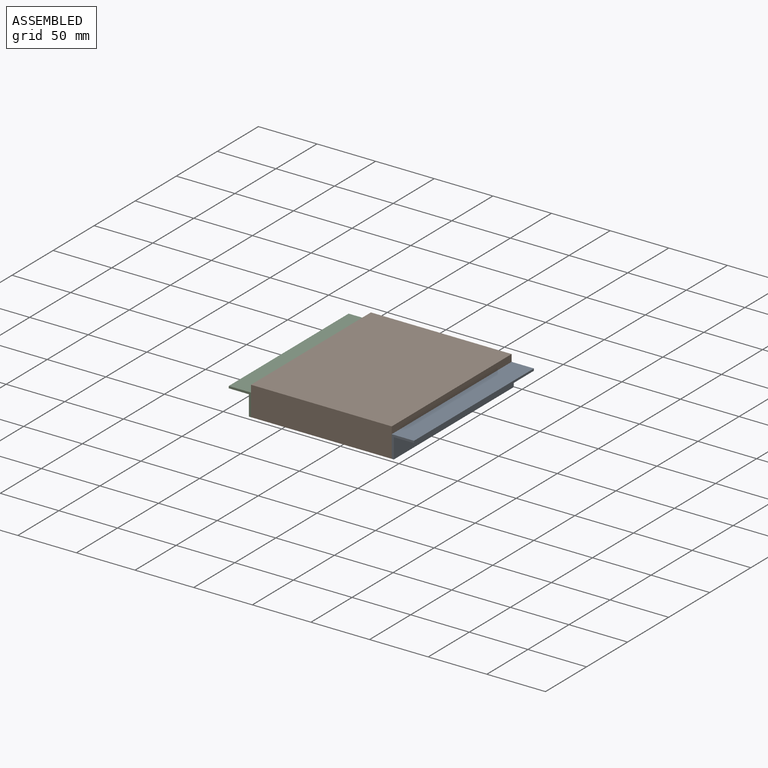
[diagram: assembled view]
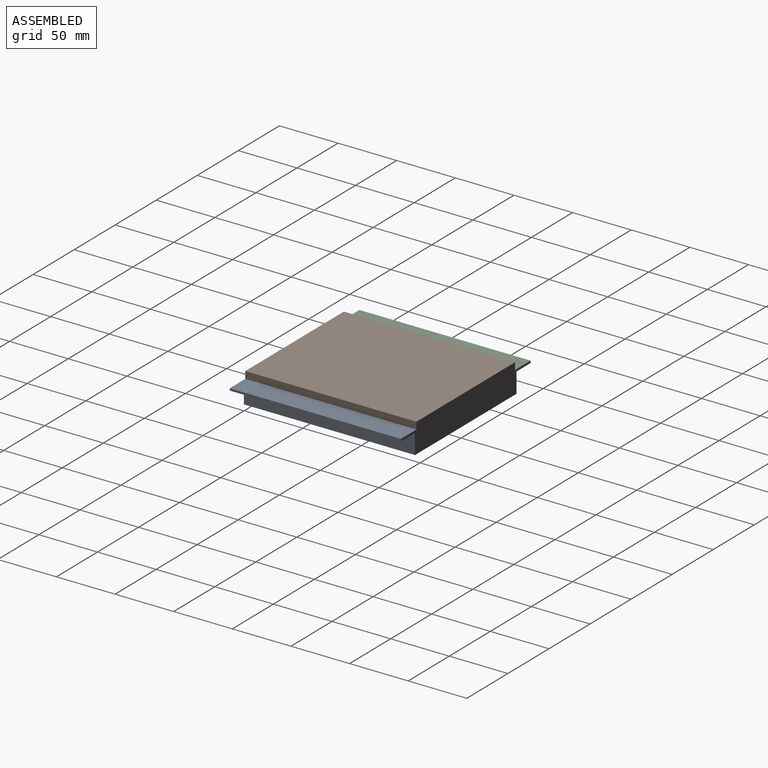
[diagram: assembled view, second angle]
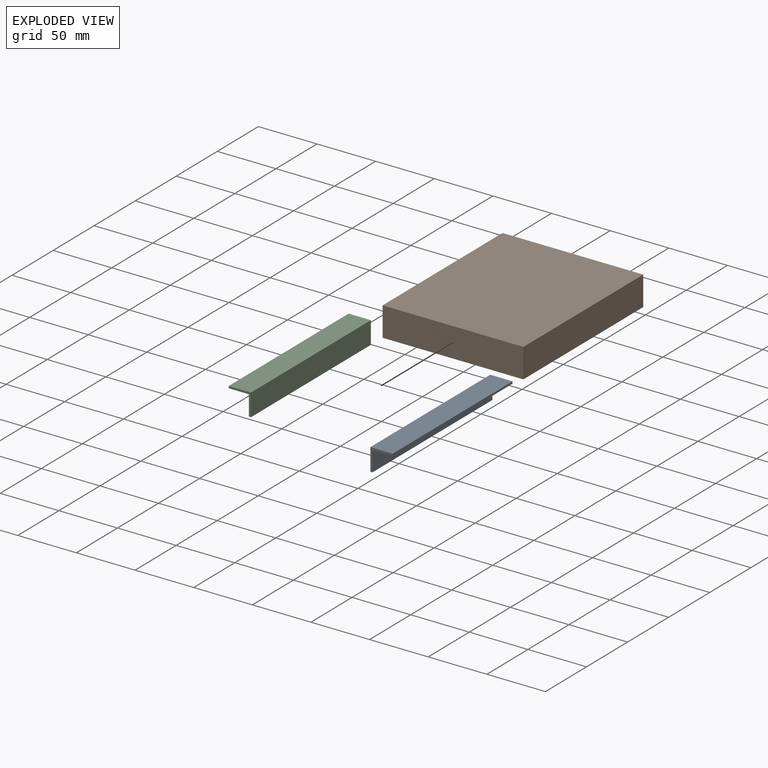
[diagram: exploded view]
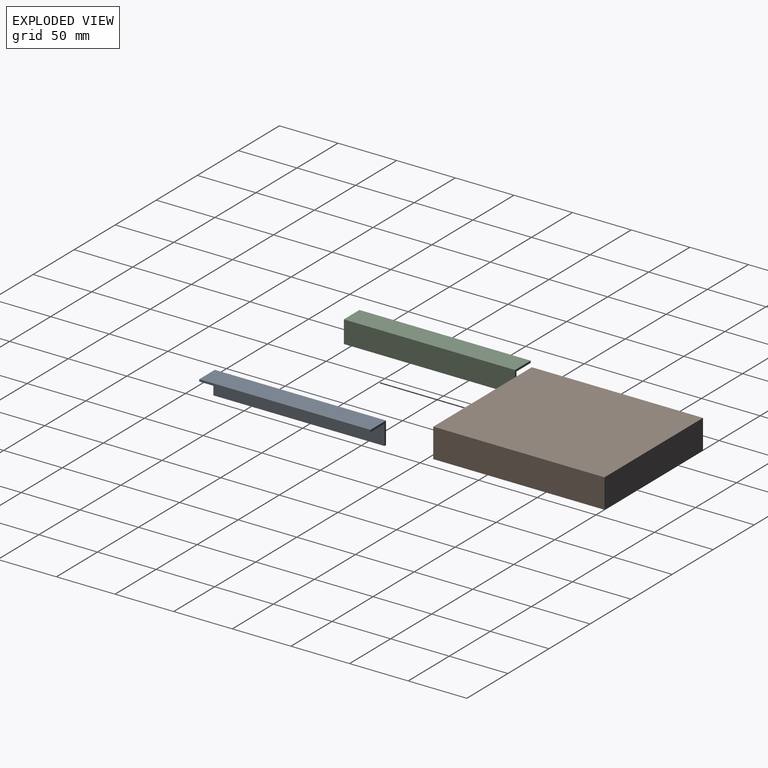
[diagram: exploded view, second angle]
ASSEMBLY  parts=3 mates=2
PART A: 8 faces, bbox 19x146x19 mm
  f0: plane 146x19mm, normal (0,0,1), area 2774mm2, adj f1,f5,f6,f7
  f1: plane 146x19mm, normal (-1,0,0), area 2774mm2, adj f0,f2,f6,f7
  f2: plane 146x1.8mm, normal (0,0,-1), area 262.8mm2, adj f1,f3,f6,f7
  f3: plane 146x17.2mm, normal (1,0,0), area 2511.2mm2, adj f2,f4,f6,f7
  f4: plane 146x17.2mm, normal (0,0,-1), area 2511.2mm2, adj f3,f5,f6,f7
  f5: plane 146x1.8mm, normal (1,0,0), area 262.8mm2, adj f0,f4,f6,f7
  f6: plane 19x19mm, normal (0,-1,0), area 65.2mm2, adj f0,f1,f2,f3,f4,f5
  f7: plane 19x19mm, normal (0,1,0), area 65.2mm2, adj f0,f1,f2,f3,f4,f5
PART B: 6 faces, bbox 120x146x25 mm
  f0: plane 146x25mm, normal (-1,0,0), area 3650mm2, adj f1,f3,f4,f5
  f1: plane 120x25mm, normal (0,-1,0), area 3000mm2, adj f0,f2,f4,f5
  f2: plane 146x25mm, normal (1,0,0), area 3650mm2, adj f1,f3,f4,f5
  f3: plane 120x25mm, normal (0,1,0), area 3000mm2, adj f0,f2,f4,f5
  f4: plane 146x120mm, normal (0,0,1), area 17520mm2, adj f0,f1,f2,f3
  f5: plane 146x120mm, normal (0,0,-1), area 17520mm2, adj f0,f1,f2,f3
PART C: 8 faces, bbox 19x146x19 mm
  f0: plane 146x19mm, normal (1,0,0), area 2774mm2, adj f1,f5,f6,f7
  f1: plane 146x19mm, normal (0,0,1), area 2774mm2, adj f0,f2,f6,f7
  f2: plane 146x1.8mm, normal (-1,0,0), area 262.8mm2, adj f1,f3,f6,f7
  f3: plane 146x17.2mm, normal (0,0,-1), area 2511.2mm2, adj f2,f4,f6,f7
  f4: plane 146x17.2mm, normal (-1,0,0), area 2511.2mm2, adj f3,f5,f6,f7
  f5: plane 146x1.8mm, normal (0,0,-1), area 262.8mm2, adj f0,f4,f6,f7
  f6: plane 19x19mm, normal (0,-1,0), area 65.2mm2, adj f0,f1,f2,f3,f4,f5
  f7: plane 19x19mm, normal (0,1,0), area 65.2mm2, adj f0,f1,f2,f3,f4,f5
PLACE A t=(-14.62,-6.19,4.01)mm
PLACE B t=(-14.62,-152.19,4.01)mm
PLACE C t=(-14.62,-6.19,4.01)mm
MATE fastened B.f1 <-> A.f6  axis (0,1,0) through (45.38,-152.19,4.01)mm
MATE fastened C.f6 <-> B.f1  axis (0,1,0) through (-74.62,-152.19,4.01)mm
